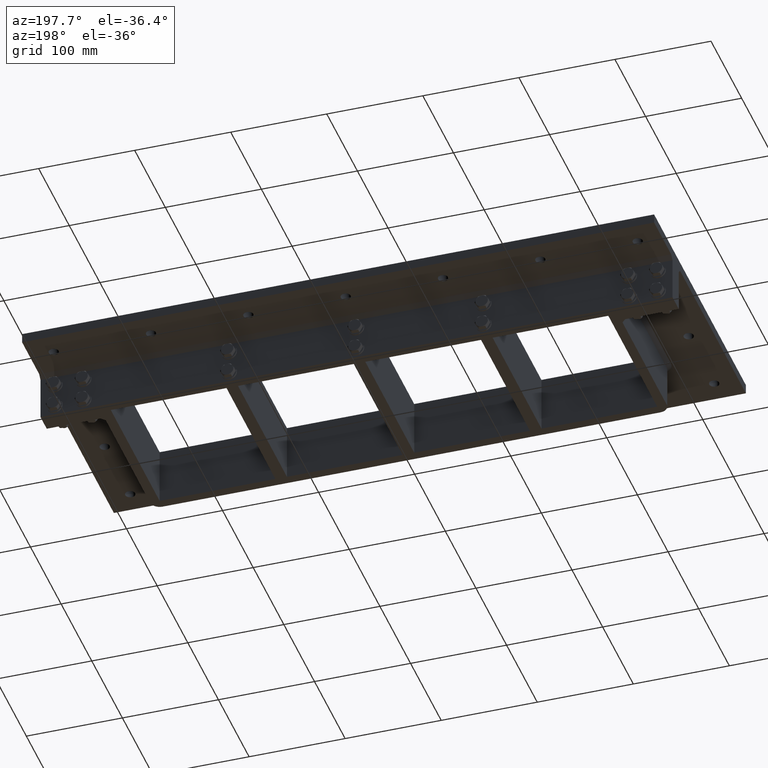
[diagram: clean part render]
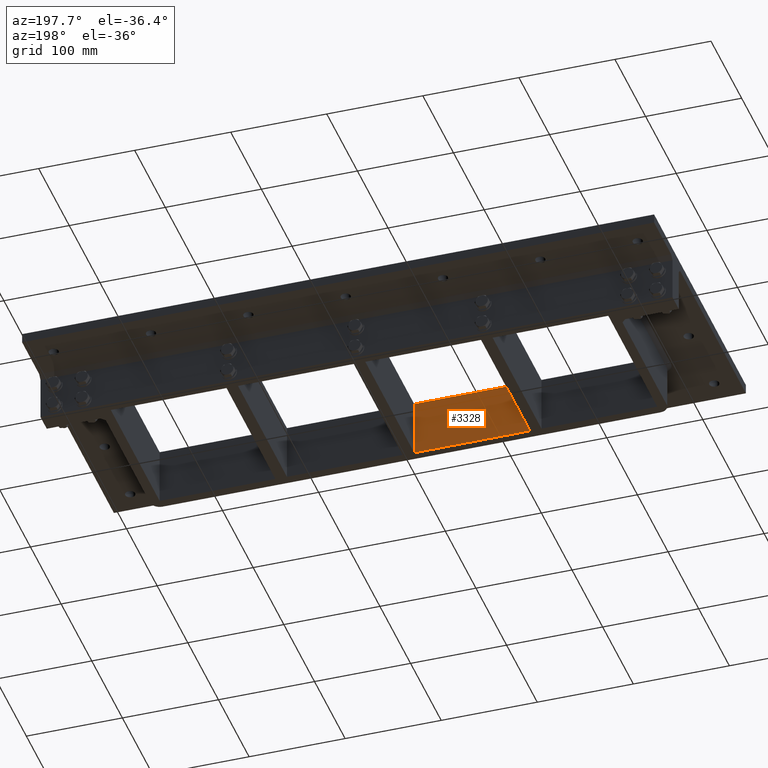
[diagram: same view with one face highlighted and labeled with its STEP entity id]
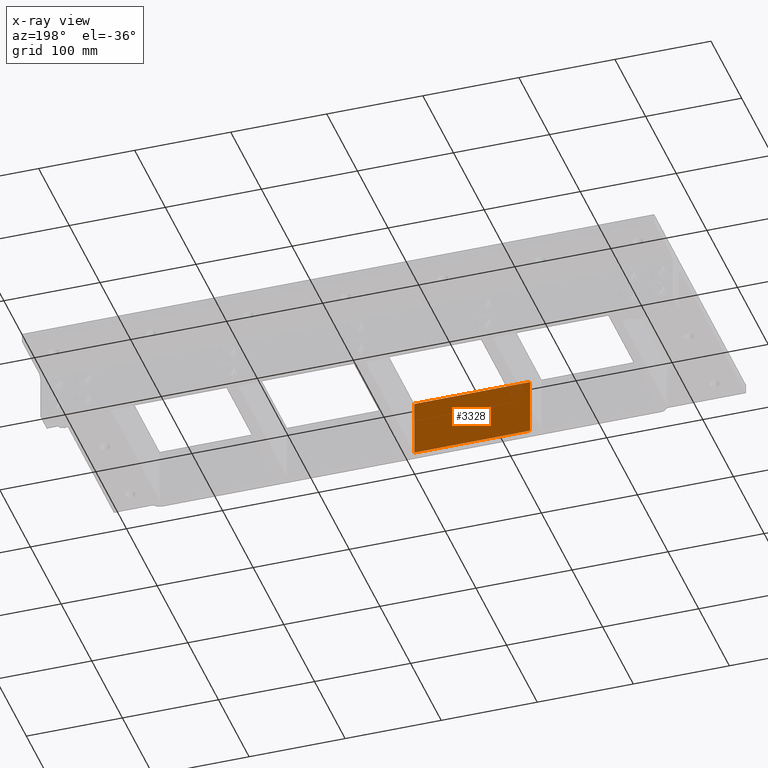
[diagram: x-ray of the same camera — body ghosted, the highlighted face saturated]
A machine part, auxiliary view. The second image highlights one B-rep face of the part: STEP entity #3328.
The next image is the same camera in x-ray: the body ghosted, the highlighted face saturated — about 3% of this face is hidden behind the body in this view.
In plain terms, the highlighted planar face has unit normal (-0, -1, 0).
Its self-contained STEP definition (entity closure, byte-faithful):
#621=FACE_OUTER_BOUND('',#844,.T.);
#844=EDGE_LOOP('',(#2623,#2624,#2625,#2626));
#1099=LINE('',#5257,#1358);
#1125=LINE('',#5310,#1384);
#1139=LINE('',#5356,#1398);
#1158=LINE('',#5397,#1417);
#1358=VECTOR('',#4249,10.);
#1384=VECTOR('',#4281,10.);
#1398=VECTOR('',#4331,10.);
#1417=VECTOR('',#4394,10.);
#1628=VERTEX_POINT('',#5254);
#1629=VERTEX_POINT('',#5256);
#1652=VERTEX_POINT('',#5307);
#1653=VERTEX_POINT('',#5309);
#1945=EDGE_CURVE('',#1628,#1629,#1099,.T.);
#1973=EDGE_CURVE('',#1652,#1653,#1125,.T.);
#1998=EDGE_CURVE('',#1652,#1629,#1139,.T.);
#2017=EDGE_CURVE('',#1653,#1628,#1158,.T.);
#2623=ORIENTED_EDGE('',*,*,#1945,.F.);
#2624=ORIENTED_EDGE('',*,*,#2017,.F.);
#2625=ORIENTED_EDGE('',*,*,#1973,.F.);
#2626=ORIENTED_EDGE('',*,*,#1998,.T.);
#3204=PLANE('',#3777);
#3328=ADVANCED_FACE('',(#621),#3204,.F.);
#3777=AXIS2_PLACEMENT_3D('',#5396,#4392,#4393);
#4249=DIRECTION('',(1.,-7.37077526722096E-17,0.));
#4281=DIRECTION('',(-1.,7.37077526722096E-17,0.));
#4331=DIRECTION('',(0.,0.,-1.));
#4392=DIRECTION('center_axis',(-7.37077526722096E-17,-1.,0.));
#4393=DIRECTION('ref_axis',(-1.,7.37077526722096E-17,0.));
#4394=DIRECTION('',(0.,0.,-1.));
#5254=CARTESIAN_POINT('',(-126.5,-79.75,-60.));
#5256=CARTESIAN_POINT('',(-6.00000000000001,-79.75,-60.));
#5257=CARTESIAN_POINT('',(-3.00000000000001,-79.75,-60.));
#5307=CARTESIAN_POINT('',(-6.00000000000001,-79.75,0.));
#5309=CARTESIAN_POINT('',(-126.5,-79.75,0.));
#5310=CARTESIAN_POINT('',(-3.00000000000001,-79.75,0.));
#5356=CARTESIAN_POINT('',(-6.00000000000001,-79.75,0.));
#5396=CARTESIAN_POINT('Origin',(-6.00000000000001,-79.75,0.));
#5397=CARTESIAN_POINT('',(-126.5,-79.75,0.));